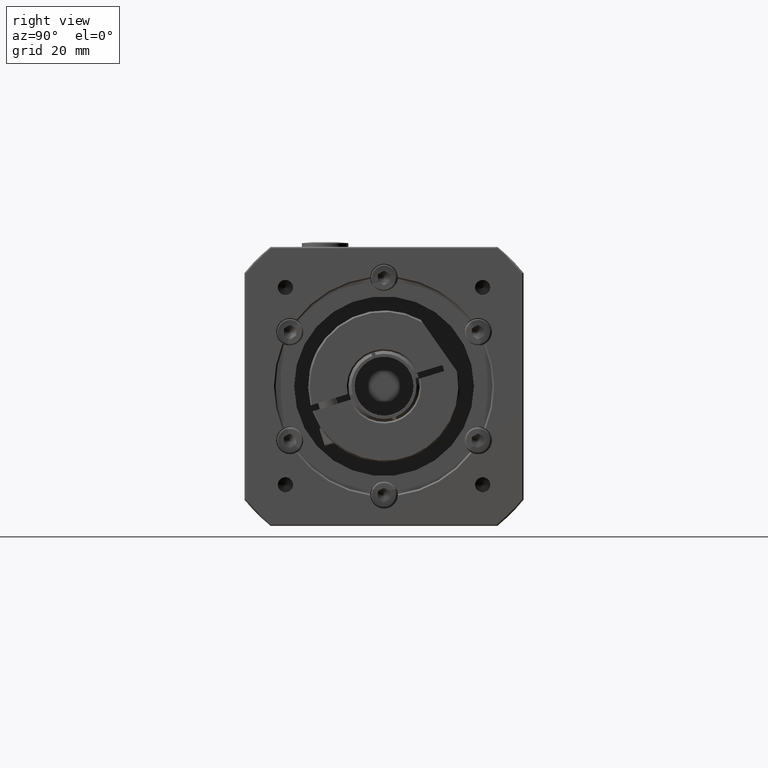
[diagram: clean part render]
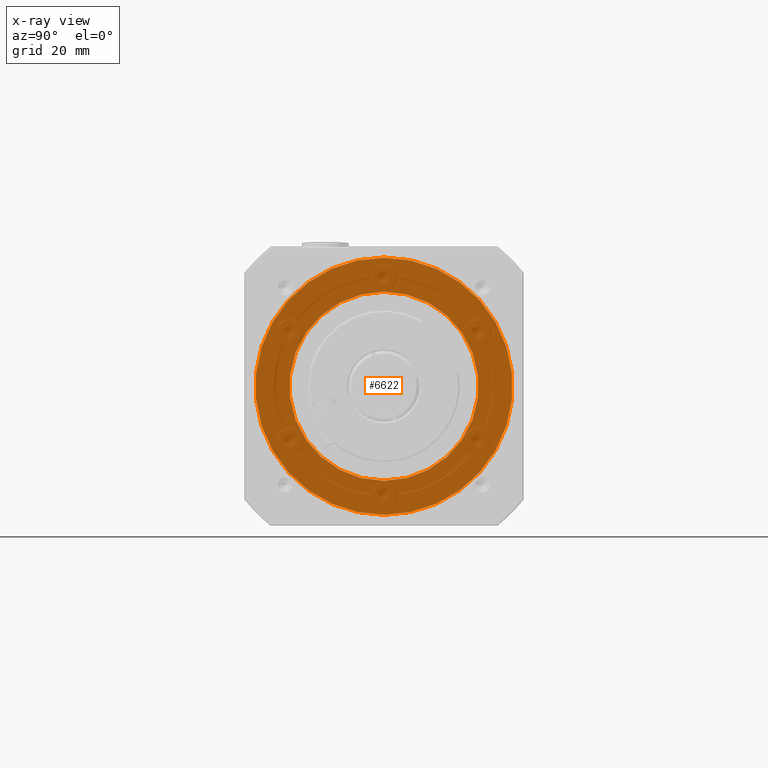
[diagram: x-ray — body ghosted, one internal face saturated and labeled with its STEP entity id]
A machine part, right view, then the same camera in x-ray: the body is ghosted and one INTERNAL B-rep face — a face not visible from any outside direction — is saturated and labeled: STEP entity #6622.
In plain terms, the highlighted planar face has unit normal (-1, -0, 0).
Its self-contained STEP definition (entity closure, byte-faithful):
#1047=PLANE('',#7296);
#1253=FACE_BOUND('',#2152,.T.);
#1594=FACE_OUTER_BOUND('',#2151,.T.);
#2151=EDGE_LOOP('',(#5218));
#2152=EDGE_LOOP('',(#5219));
#2668=CIRCLE('',#7297,41.5);
#2669=CIRCLE('',#7298,30.5);
#3168=VERTEX_POINT('',#11164);
#3169=VERTEX_POINT('',#11166);
#3907=EDGE_CURVE('',#3168,#3168,#2668,.T.);
#3908=EDGE_CURVE('',#3169,#3169,#2669,.T.);
#5218=ORIENTED_EDGE('',*,*,#3907,.T.);
#5219=ORIENTED_EDGE('',*,*,#3908,.T.);
#6622=ADVANCED_FACE('',(#1594,#1253),#1047,.T.);
#7296=AXIS2_PLACEMENT_3D('',#11163,#8738,#8739);
#7297=AXIS2_PLACEMENT_3D('',#11165,#8740,#8741);
#7298=AXIS2_PLACEMENT_3D('',#11167,#8742,#8743);
#8738=DIRECTION('center_axis',(-1.,-7.32403674775559E-22,4.77265694971786E-15));
#8739=DIRECTION('ref_axis',(4.9737991503207E-15,-2.1316282072803E-15,1.));
#8740=DIRECTION('center_axis',(-1.,-1.73667142350752E-18,4.77265694971786E-15));
#8741=DIRECTION('ref_axis',(4.77265694971787E-15,-2.41473507855972E-15,
1.));
#8742=DIRECTION('center_axis',(1.,7.32403674775559E-22,-4.77265694971786E-15));
#8743=DIRECTION('ref_axis',(4.77265694971786E-15,-2.39738784379994E-15,
1.));
#11163=CARTESIAN_POINT('Origin',(33.9702896556818,-32.3933275789247,10.8503877548308));
#11164=CARTESIAN_POINT('',(33.9702896556816,-32.3933275789245,-30.6496122451692));
#11165=CARTESIAN_POINT('Origin',(33.9702896556818,-32.3933275789246,10.8503877548308));
#11166=CARTESIAN_POINT('',(33.9702896556817,-32.3933275789246,-19.6496122451692));
#11167=CARTESIAN_POINT('Origin',(33.9702896556818,-32.3933275789246,10.8503877548308));